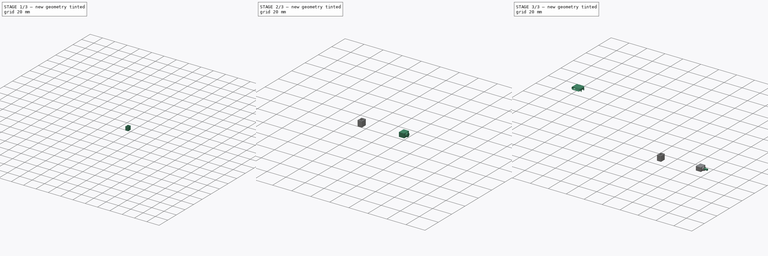
[diagram: build sequence overview — one tinted view per stage of 3, left to right]
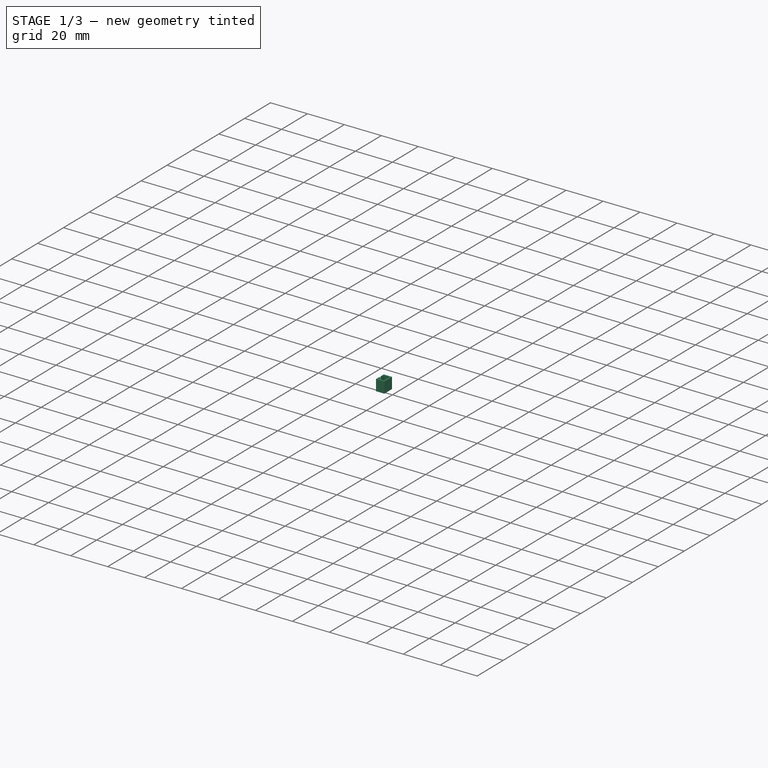
[diagram: stage 1 of 3 — iso view after this stage's code; geometry added in this stage tinted green]
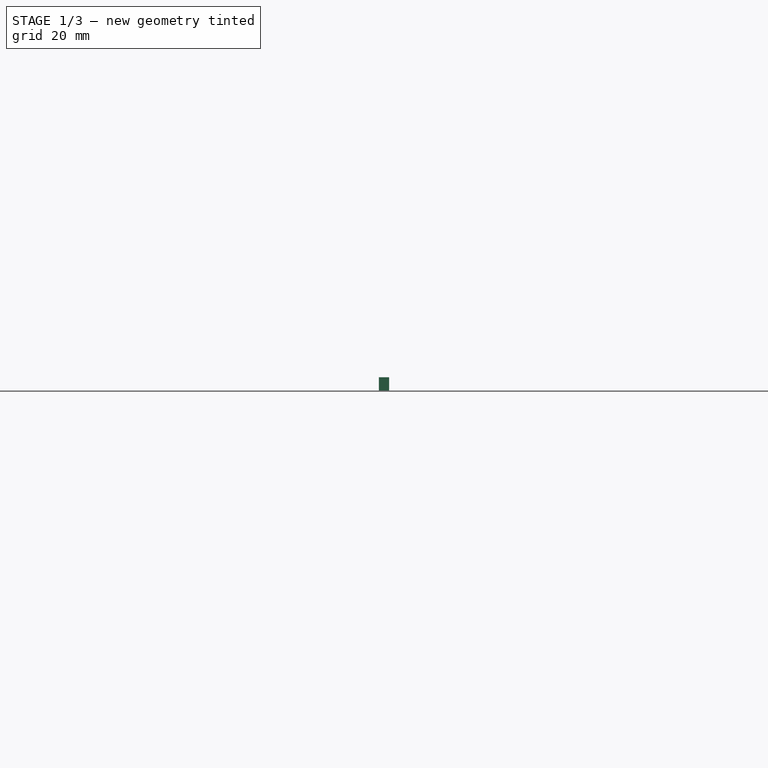
[diagram: stage 1 of 3 — front view after this stage's code; geometry added in this stage tinted green]
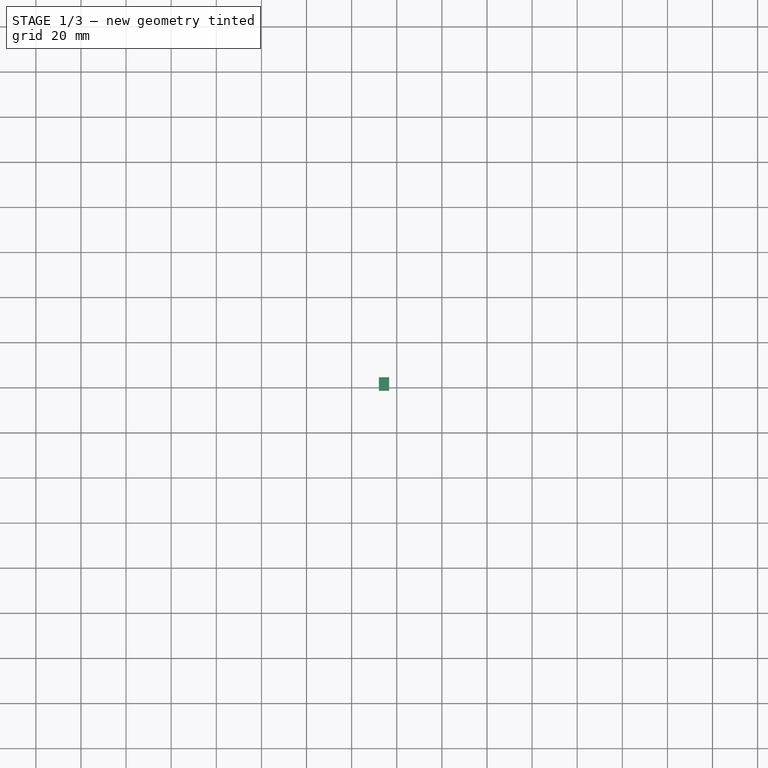
[diagram: stage 1 of 3 — top view after this stage's code; geometry added in this stage tinted green]
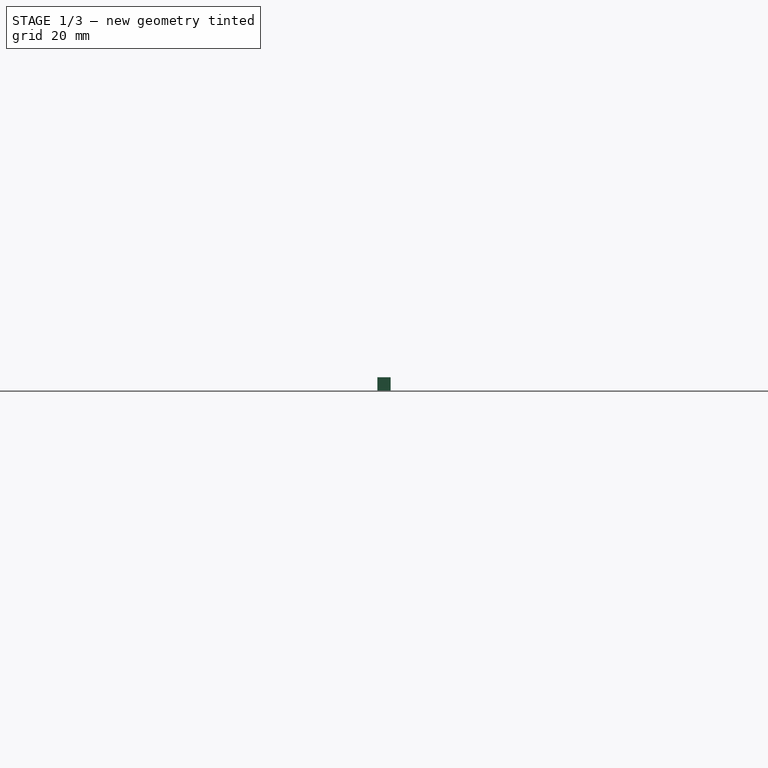
[diagram: stage 1 of 3 — right view after this stage's code; geometry added in this stage tinted green]
FCSTD DOCUMENT  (FreeCAD 0.18.4R)
Label: pcbpopulated
License: All rights reserved
LicenseURL: http://en.wikipedia.org/wiki/All_rights_reserved
objects: Part::Feature×33, Sketcher::SketchObject×6, App::Part×5, PartDesign::Pad×4, PartDesign::Body×3, PartDesign::ShapeBinder×2, PartDesign::CoordinateSystem×1, PartDesign::Boolean×1, PartDesign::Pocket×1
note: 56 computed .brp shape members not serialized (recipe doc carries the construction recipe); baked Part::Feature solids carry a one-line shape summary decoded from their .brp

FEATURE [PartDesign::Body] Body  label="switch"
  Group = -> [CopyPcb_ca95,Sketch,Pad,Sketch001,Pad001,Sketch002,Pad002]
  Origin = -> Origin005
  Tip = -> Pad002
FEATURE [PartDesign::ShapeBinder] CopyPcb_ca95001
  TraceSupport = false
FEATURE [Sketcher::SketchObject] Sketch003
  ExternalGeometry = -> [CopyPcb_ca95001]
  MapMode = 5
  Support = -> [CopyPcb_ca95001]
  sketch-geometry (4):
    g0: LineSegment StartX=152.097 StartY=-75.393 StartZ=0 EndX=156.597 EndY=-75.393 EndZ=0
    g1: LineSegment StartX=156.597 StartY=-75.393 StartZ=0 EndX=156.597 EndY=-81.293 EndZ=0
    g2: LineSegment StartX=156.597 StartY=-81.293 StartZ=0 EndX=152.097 EndY=-81.293 EndZ=0
    g3: LineSegment StartX=152.097 StartY=-81.293 StartZ=0 EndX=152.097 EndY=-75.393 EndZ=0
  constraints (12):
    c: Coincident(g0,g1)
    c: Coincident(g1,g2)
    c: Coincident(g2,g3)
    c: Coincident(g3,g0)
    c: Horizontal(g0)
    c: Horizontal(g2)
    c: Vertical(g1)
    c: Vertical(g3)
    c: Distance(g-3,g3) = 1.7
    c: Distance(g0) = 4.5
    c: Distance(g1) = 5.9
    c: Distance(g-3,g0) = 1.95
FEATURE [PartDesign::Pad] Pad003
  Length = 6
  Length2 = 100
  Profile = -> Sketch003
  Type = 0
FEATURE [Sketcher::SketchObject] Sketch004
  ExternalGeometry = -> [Pad003]
  MapMode = 5
  Placement = pos=(0,0,6) rot=(0,0,1;0rad)
  Support = -> [Pad003]
  sketch-geometry (8):
    g0: LineSegment StartX=155.997 StartY=-75.993 StartZ=0 EndX=152.697 EndY=-75.993 EndZ=0
    g1: LineSegment StartX=152.697 StartY=-75.993 StartZ=0 EndX=152.697 EndY=-77.843 EndZ=0
    g2: LineSegment StartX=152.697 StartY=-77.843 StartZ=0 EndX=152.097 EndY=-77.843 EndZ=0
    g3: LineSegment StartX=152.097 StartY=-77.843 StartZ=0 EndX=152.097 EndY=-78.843 EndZ=0
    g4: LineSegment StartX=152.097 StartY=-78.843 StartZ=0 EndX=152.697 EndY=-78.843 EndZ=0
    g5: LineSegment StartX=152.697 StartY=-78.843 StartZ=0 EndX=152.697 EndY=-80.693 EndZ=0
    g6: LineSegment StartX=152.697 StartY=-80.693 StartZ=0 EndX=155.997 EndY=-80.693 EndZ=0
    g7: LineSegment StartX=155.997 StartY=-80.693 StartZ=0 EndX=155.997 EndY=-75.993 EndZ=0
  constraints (24):
    c: Horizontal(g0)
    c: Coincident(g0,g1)
    c: Vertical(g1)
    c: Coincident(g1,g2)
    c: Horizontal(g2)
    c: Coincident(g2,g3)
    c: Vertical(g3)
    c: Coincident(g3,g4)
    c: Horizontal(g4)
    c: Coincident(g4,g5)
    c: Vertical(g5)
    c: Coincident(g5,g6)
    c: Horizontal(g6)
    c: Coincident(g6,g7)
    c: Coincident(g7,g0)
    c: Vertical(g7)
    c: PointOnObject(g2,g-3)
    c: PointOnObject(g1,g5)
    c: Distance(g-3,g0) = 0.6
    c: Distance(g0,g-3) = 0.6
    c: Distance(g-3,g6) = 0.6
    c: Distance(g0,g-4) = 0.6
    c: Distance(g3) = 1
    c: Distance(g-3,g2) = 2.45
FEATURE [PartDesign::Pocket] Pocket
  BaseFeature = -> Pad003
  Length = 5
  Length2 = 100
  Profile = -> Sketch004
  Type = 0
FEATURE [PartDesign::Body] Body003
  Group = -> [Sketch003,Pad003,Sketch004,Pocket,CopyPcb_ca95001]
  Origin = -> Origin008
  Tip = -> Pocket
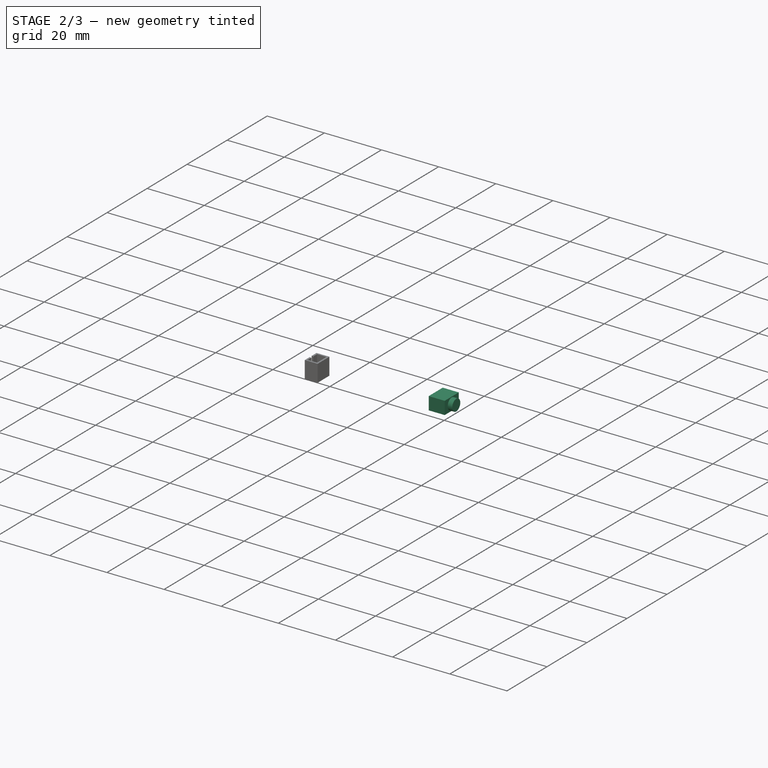
[diagram: stage 2 of 3 — iso view after this stage's code; geometry added in this stage tinted green]
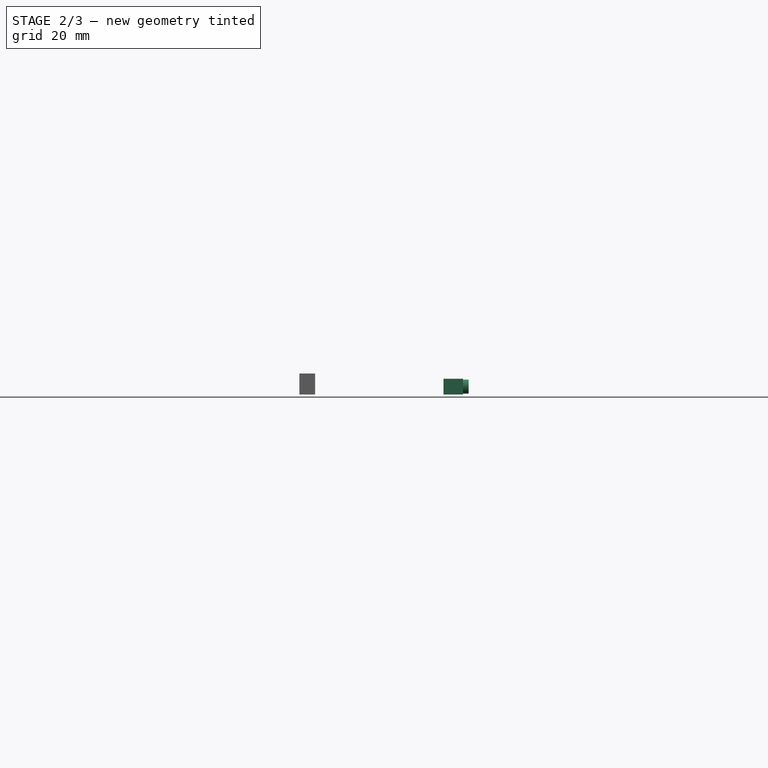
[diagram: stage 2 of 3 — front view after this stage's code; geometry added in this stage tinted green]
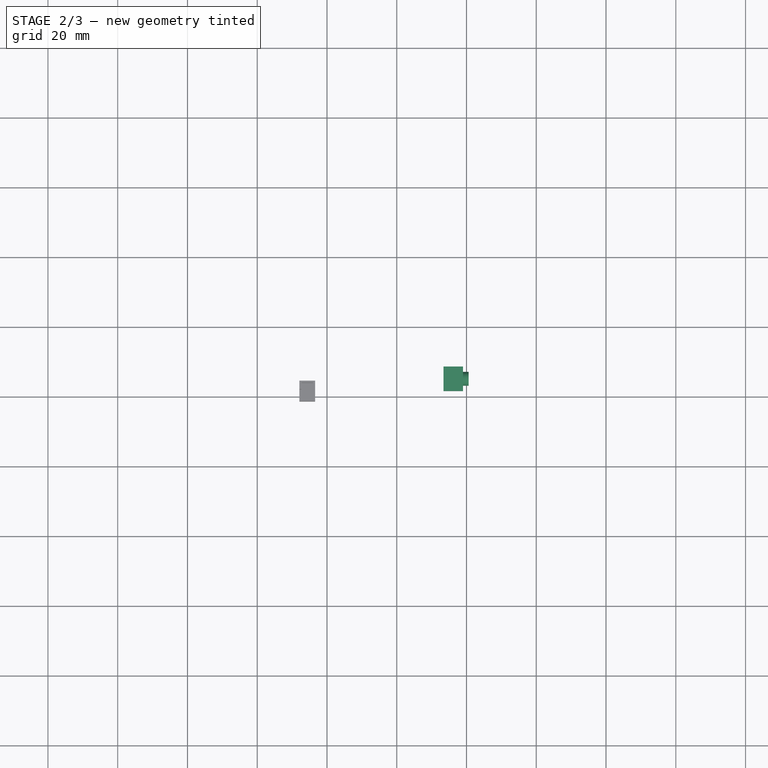
[diagram: stage 2 of 3 — top view after this stage's code; geometry added in this stage tinted green]
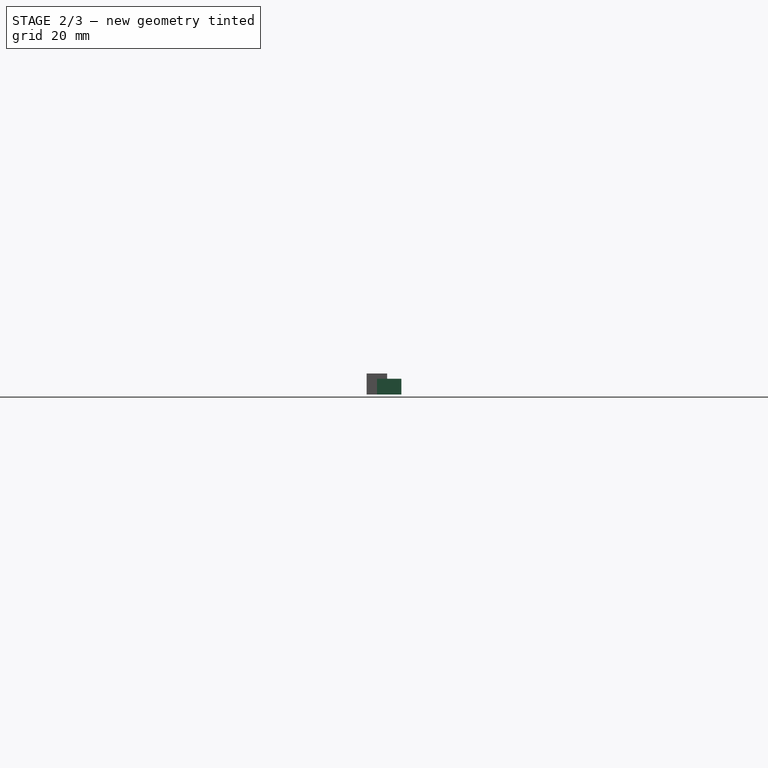
[diagram: stage 2 of 3 — right view after this stage's code; geometry added in this stage tinted green]
FEATURE [PartDesign::Body] Body002  label="usb-c"
  Group = -> [Boolean]
  Origin = -> Origin007
  Placement = pos=(178.2,-68.2,0) rot=(0,0,1;3.14159rad)
  Tip = -> Boolean
FEATURE [PartDesign::ShapeBinder] CopyPcb_ca95
  TraceSupport = false
FEATURE [Sketcher::SketchObject] Sketch
  ExternalGeometry = -> [CopyPcb_ca95]
  MapMode = 5
  Support = -> [CopyPcb_ca95]
  sketch-geometry (10):
    g0: LineSegment StartX=193.393 StartY=-71.303 StartZ=0 EndX=198.993 EndY=-71.303 EndZ=0
    g1: LineSegment StartX=198.993 StartY=-71.303 StartZ=0 EndX=198.993 EndY=-78.303 EndZ=0
    g2: LineSegment StartX=198.993 StartY=-78.303 StartZ=0 EndX=193.393 EndY=-78.303 EndZ=0
    g3: LineSegment StartX=193.393 StartY=-78.303 StartZ=0 EndX=193.393 EndY=-71.303 EndZ=0
    g4: LineSegment [constr] StartX=192.913 StartY=-72.263 StartZ=0 EndX=192.913 EndY=-77.343 EndZ=0
    g5: GeomPoint X=193.393 Y=-74.803 Z=0
    g6: LineSegment StartX=193.393 StartY=-74.803 StartZ=0 EndX=192.913 EndY=-74.803 EndZ=0
    g7: LineSegment [constr] StartX=192.913 StartY=-72.263 StartZ=0 EndX=197.993 EndY=-77.343 EndZ=0
    g8: LineSegment [constr] StartX=197.993 StartY=-72.263 StartZ=0 EndX=192.913 EndY=-77.343 EndZ=0
    g9: GeomPoint X=195.453 Y=-74.803 Z=0
  constraints (25):
    c: Coincident(g0,g1)
    c: Coincident(g1,g2)
    c: Coincident(g2,g3)
    c: Coincident(g3,g0)
    c: Horizontal(g0)
    c: Horizontal(g2)
    c: Vertical(g1)
    c: Vertical(g3)
    c: Coincident(g4,g-3)
    c: Coincident(g4,g-6)
    c: Distance(g3) = 7
    c: PointOnObject(g5,g3)
    c: Distance(g5,g0) = 3.5
    c: Coincident(g6,g5)
    c: PointOnObject(g6,g4)
    c: Horizontal(g6)
    c: Coincident(g7,g4)
    c: Coincident(g7,g-5)
    c: Coincident(g8,g-4)
    c: Coincident(g8,g4)
    c: PointOnObject(g9,g8)
    c: PointOnObject(g9,g7)
    c: PointOnObject(g9,g6)
    c: Distance(g0) = 5.6
    c: Distance(g8,g1) = 1
FEATURE [PartDesign::Pad] Pad
  Length = 4.5
  Length2 = 100
  Profile = -> Sketch
  Type = 0
FEATURE [Sketcher::SketchObject] Sketch001
  ExternalGeometry = -> [Pad]
  MapMode = 5
  Placement = pos=(198.993,0,0) rot=(0.57735,0.57735,0.57735;2.0944rad)
  Support = -> [Pad]
  sketch-geometry (4):
    g0: LineSegment [constr] StartX=-78.303 StartY=4.5 StartZ=0 EndX=-71.303 EndY=0 EndZ=0
    g1: LineSegment [constr] StartX=-71.303 StartY=4.5 StartZ=0 EndX=-78.303 EndY=0 EndZ=0
    g2: GeomPoint X=-74.803 Y=2.25 Z=0
    g3: Circle CenterX=-74.803 CenterY=2.25 CenterZ=0 NormalX=0 NormalY=0 NormalZ=1 AngleXU=0 Radius=2
  constraints (8):
    c: Coincident(g0,g-4)
    c: Coincident(g0,g-5)
    c: Coincident(g1,g-5)
    c: Coincident(g1,g-4)
    c: PointOnObject(g2,g0)
    c: PointOnObject(g2,g1)
    c: Coincident(g3,g2)
    c: Radius(g3) = 2
FEATURE [PartDesign::Pad] Pad001
  BaseFeature = -> Pad
  Length = 1.6
  Length2 = 100
  Profile = -> Sketch001
  Type = 0
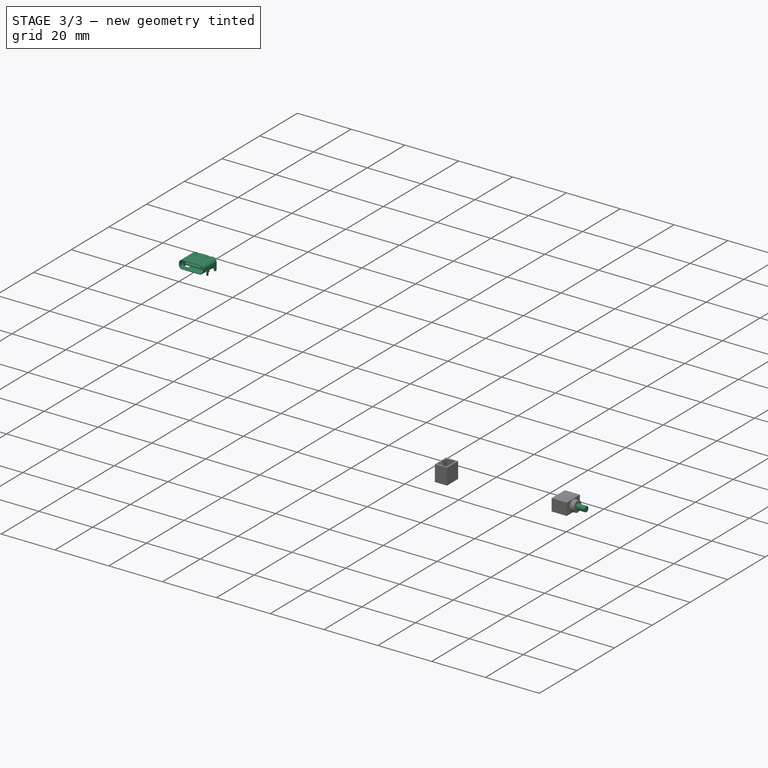
[diagram: stage 3 of 3 — iso view after this stage's code; geometry added in this stage tinted green]
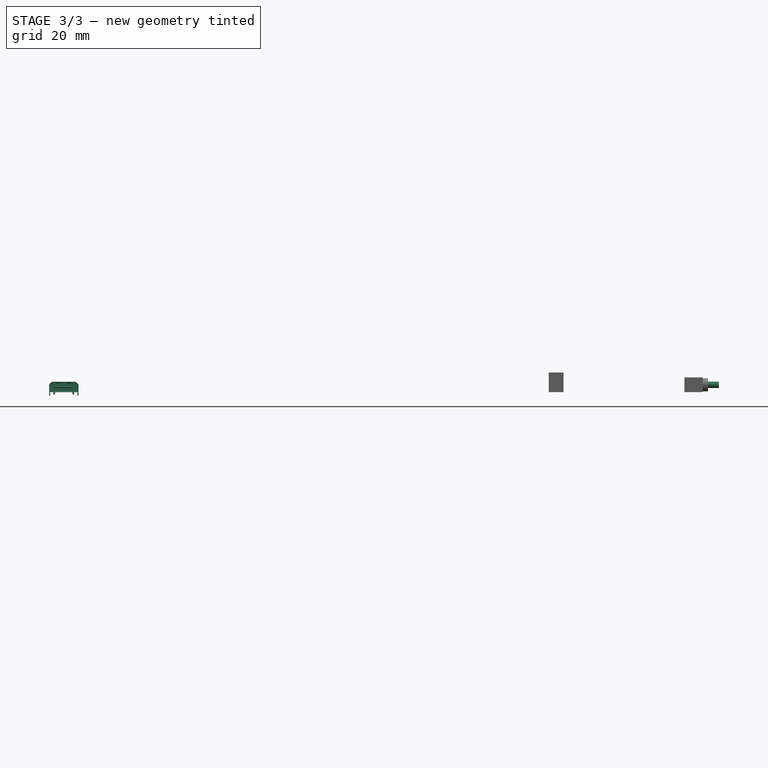
[diagram: stage 3 of 3 — front view after this stage's code; geometry added in this stage tinted green]
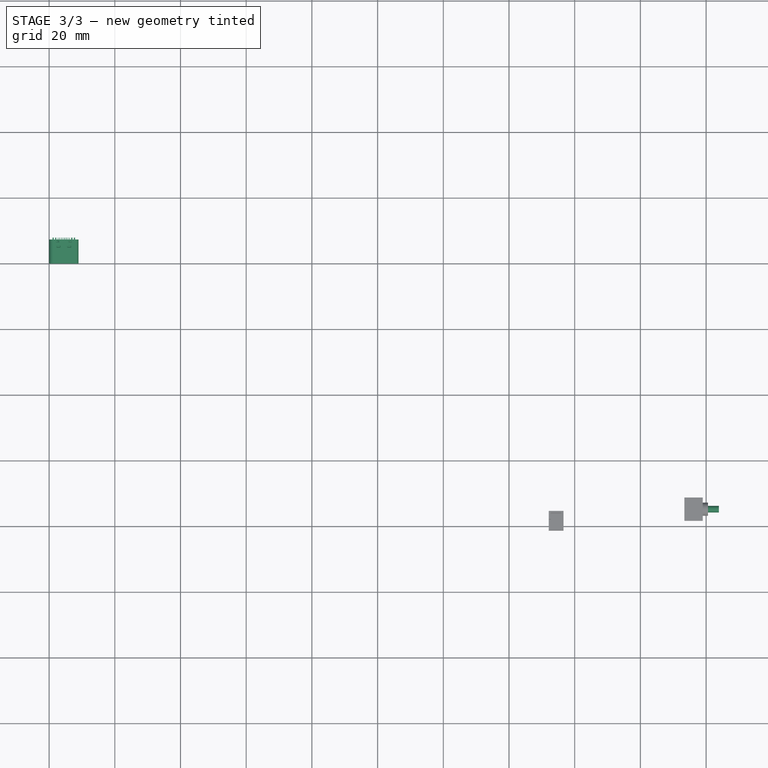
[diagram: stage 3 of 3 — top view after this stage's code; geometry added in this stage tinted green]
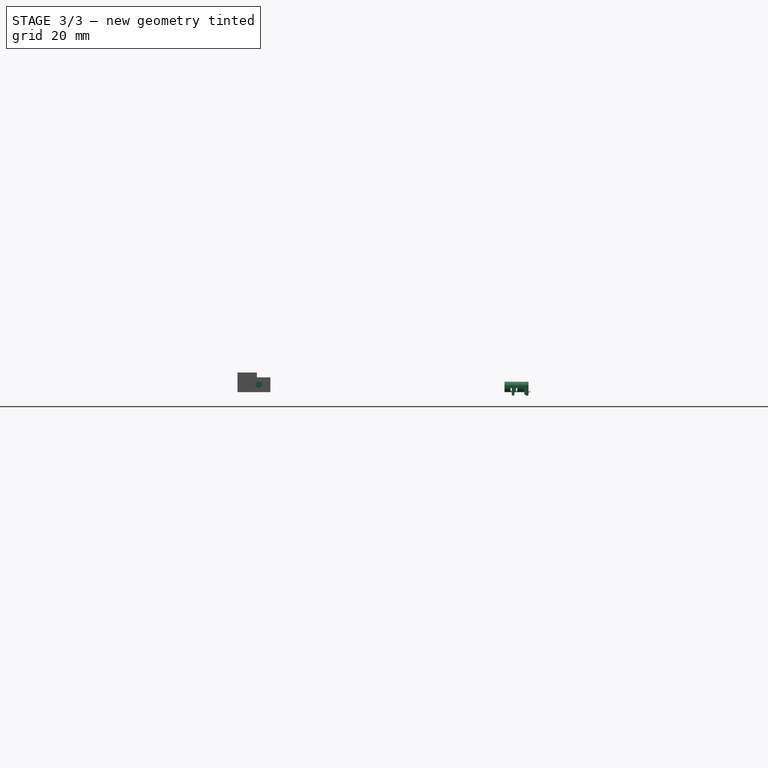
[diagram: stage 3 of 3 — right view after this stage's code; geometry added in this stage tinted green]
FEATURE [PartDesign::CoordinateSystem] Local_CS_ca95
  AttacherType = Attacher::AttachEngine3D
FEATURE [Part::Feature] Pcb_ca95
  shape: bbox 49 x 31 x 1.6 mm, 124 faces (baked)
FEATURE [Sketcher::SketchObject] PCB_Sketch_ca95
  sketch-geometry (24):
    g0: LineSegment StartX=178.5 StartY=-90.75 StartZ=0 EndX=178.5 EndY=-78.5 EndZ=0
    g1: LineSegment StartX=178 StartY=-78 StartZ=0 EndX=169.5 EndY=-78 EndZ=0
    g2: LineSegment StartX=169 StartY=-78.5 StartZ=0 EndX=169 EndY=-90.75 EndZ=0
    g3: LineSegment StartX=169.5 StartY=-91.25 StartZ=0 EndX=178 EndY=-91.25 EndZ=0
    g4: LineSegment StartX=190.5 StartY=-74 StartZ=0 EndX=181.5 EndY=-74 EndZ=0
    g5: LineSegment StartX=191.5 StartY=-70 StartZ=0 EndX=191.5 EndY=-73 EndZ=0
    g6: LineSegment StartX=180.5 StartY=-73 StartZ=0 EndX=180.5 EndY=-70 EndZ=0
    g7: LineSegment StartX=199 StartY=-69 StartZ=0 EndX=192.5 EndY=-69 EndZ=0
    g8: LineSegment StartX=179.5 StartY=-69 StartZ=0 EndX=152 EndY=-69 EndZ=0
    g9: LineSegment StartX=200 StartY=-99 StartZ=0 EndX=200 EndY=-70 EndZ=0
    g10: LineSegment StartX=151 StartY=-70 StartZ=0 EndX=151 EndY=-99 EndZ=0
    g11: LineSegment StartX=152 StartY=-100 StartZ=0 EndX=199 EndY=-100 EndZ=0
    g12: ArcOfCircle CenterX=178 CenterY=-78.5 CenterZ=0 NormalX=0 NormalY=0 NormalZ=1 AngleXU=0 Radius=0.5 StartAngle=0 EndAngle=1.5708
    g13: ArcOfCircle CenterX=169.5 CenterY=-78.5 CenterZ=0 NormalX=0 NormalY=0 NormalZ=1 AngleXU=0 Radius=0.5 StartAngle=1.5708 EndAngle=3.14159
    g14: ArcOfCircle CenterX=178 CenterY=-90.75 CenterZ=0 NormalX=0 NormalY=0 NormalZ=1 AngleXU=0 Radius=0.5 StartAngle=4.71239 EndAngle=6.28319
    g15: ArcOfCircle CenterX=169.5 CenterY=-90.75 CenterZ=0 NormalX=0 NormalY=0 NormalZ=1 AngleXU=0 Radius=0.5 StartAngle=3.14159 EndAngle=4.71239
    g16: ArcOfCircle CenterX=190.5 CenterY=-73 CenterZ=0 NormalX=0 NormalY=0 NormalZ=1 AngleXU=0 Radius=1 StartAngle=4.71239 EndAngle=6.28319
    g17: ArcOfCircle CenterX=181.5 CenterY=-73 CenterZ=0 NormalX=0 NormalY=0 NormalZ=1 AngleXU=0 Radius=1 StartAngle=3.14159 EndAngle=4.71239
    g18: ArcOfCircle CenterX=192.5 CenterY=-70 CenterZ=0 NormalX=0 NormalY=0 NormalZ=1 AngleXU=0 Radius=1 StartAngle=1.5708 EndAngle=3.14159
    g19: ArcOfCircle CenterX=179.5 CenterY=-70 CenterZ=0 NormalX=0 NormalY=0 NormalZ=1 AngleXU=0 Radius=1 StartAngle=0 EndAngle=1.5708
    g20: ArcOfCircle CenterX=199 CenterY=-70 CenterZ=0 NormalX=0 NormalY=0 NormalZ=1 AngleXU=0 Radius=1 StartAngle=0 EndAngle=1.5708
    g21: ArcOfCircle CenterX=152 CenterY=-70 CenterZ=0 NormalX=0 NormalY=0 NormalZ=1 AngleXU=0 Radius=1 StartAngle=1.5708 EndAngle=3.14159
    g22: ArcOfCircle CenterX=199 CenterY=-99 CenterZ=0 NormalX=0 NormalY=0 NormalZ=1 AngleXU=0 Radius=1 StartAngle=4.71239 EndAngle=6.28319
    g23: ArcOfCircle CenterX=152 CenterY=-99 CenterZ=0 NormalX=0 NormalY=0 NormalZ=1 AngleXU=0 Radius=1 StartAngle=3.14159 EndAngle=4.71239
  constraints (24):
    c: Coincident(g10,g23)
    c: Coincident(g10,g21)
    c: Coincident(g23,g11)
    c: Coincident(g21,g8)
    c: Coincident(g2,g15)
    c: Coincident(g2,g13)
    c: Coincident(g3,g15)
    c: Coincident(g1,g13)
    c: Coincident(g3,g14)
    c: Coincident(g12,g1)
    c: Coincident(g0,g14)
    c: Coincident(g12,g0)
    c: Coincident(g8,g19)
    c: Coincident(g6,g17)
    c: Coincident(g19,g6)
    c: Coincident(g17,g4)
    c: Coincident(g16,g4)
    c: Coincident(g16,g5)
    c: Coincident(g18,g5)
    c: Coincident(g18,g7)
    c: Coincident(g11,g22)
    c: Coincident(g7,g20)
    c: Coincident(g9,g22)
    c: Coincident(g20,g9)
FEATURE [App::Part] Board_Geoms_ca95
  Group = -> [Local_CS_ca95,Pcb_ca95,PCB_Sketch_ca95]
  Origin = -> Origin
FEATURE [App::Part] Bot_ca95
  Origin = -> Origin004
FEATURE [Part::Feature] Shape002  label="R15_R_0805_2012Metric_5F4384B2"
  Placement = pos=(187.833,-90.0915,0) rot=(0,0,-1;1.5708rad)
  shape: bbox 1.2 x 2 x 0.45 mm, 26 faces (baked)
FEATURE [Part::Feature] Shape003  label="R14_R_0805_2012Metric_5F41A5F7"
  Placement = pos=(190.119,-85.979,0) rot=(0,0,1;3.14159rad)
  shape: bbox 2 x 1.2 x 0.45 mm, 26 faces (baked)
FEATURE [Part::Feature] Shape004  label="R13_R_0805_2012Metric_5F41A621"
  Placement = pos=(190.119,-83.82,0) rot=(0,0,1;3.14159rad)
  shape: bbox 2 x 1.2 x 0.45 mm, 26 faces (baked)
FEATURE [Part::Feature] Shape005  label="R12_R_0805_2012Metric_5F41A5CD"
  Placement = pos=(187.96,-80.1855,0) rot=(0,0,1;1.5708rad)
  shape: bbox 1.2 x 2 x 0.45 mm, 26 faces (baked)
FEATURE [Part::Feature] Shape006  label="R11_R_0805_2012Metric_5F41A5A3"
  Placement = pos=(185.801,-80.1855,0) rot=(0,0,1;1.5708rad)
  shape: bbox 1.2 x 2 x 0.45 mm, 26 faces (baked)
FEATURE [Part::Feature] Shape007  label="R10_R_0805_2012Metric_5F438482"
  Placement = pos=(183.515,-90.0915,0) rot=(0,0,-1;1.5708rad)
  shape: bbox 1.2 x 2 x 0.45 mm, 26 faces (baked)
FEATURE [Part::Feature] Shape008  label="R9_R_0805_2012Metric_5F438452"
  Placement = pos=(185.674,-90.0915,0) rot=(0,0,1;1.5708rad)
  shape: bbox 1.2 x 2 x 0.45 mm, 26 faces (baked)
FEATURE [Part::Feature] Shape009  label="R8_R_0805_2012Metric_5F418730"
  Placement = pos=(155.575,-85.0415,0) rot=(0,0,1;1.5708rad)
  shape: bbox 1.2 x 2 x 0.45 mm, 26 faces (baked)
FEATURE [Part::Feature] Shape010  label="R7_R_0805_2012Metric_5F4188D7"
  Placement = pos=(159.337,-95.504,0) rot=(0,0,1;3.14159rad)
  shape: bbox 2 x 1.2 x 0.45 mm, 26 faces (baked)
FEATURE [Part::Feature] Shape011  label="R6_R_0805_2012Metric_5F418706"
  Placement = pos=(159.337,-93.218,0) rot=(0,0,1;0rad)
  shape: bbox 2 x 1.2 x 0.45 mm, 26 faces (baked)
FEATURE [Part::Feature] Shape012  label="R5_R_0805_2012Metric_5F418601"
  Placement = pos=(162.56,-90.2185,0) rot=(0,0,-1;1.5708rad)
  shape: bbox 1.2 x 2 x 0.45 mm, 26 faces (baked)
FEATURE [Part::Feature] Shape013  label="R4_R_0805_2012Metric_5F41862B"
  Placement = pos=(164.742,-78.232,0) rot=(0,0,1;0rad)
  shape: bbox 2 x 1.2 x 0.45 mm, 26 faces (baked)
FEATURE [Part::Feature] Shape014  label="R3_R_0805_2012Metric_5F4186A6"
  Placement = pos=(164.742,-76.073,0) rot=(0,0,1;3.14159rad)
  shape: bbox 2 x 1.2 x 0.45 mm, 26 faces (baked)
FEATURE [Part::Feature] Shape015  label="R2_R_0805_2012Metric_5F4185D7"
  Placement = pos=(164.846,-90.2185,0) rot=(0,0,1;1.5708rad)
  shape: bbox 1.2 x 2 x 0.45 mm, 26 faces (baked)
FEATURE [Part::Feature] Shape016  label="R1_R_0805_2012Metric_5F4183FD"
  Placement = pos=(167.132,-90.2185,0) rot=(0,0,-1;1.5708rad)
  shape: bbox 1.2 x 2 x 0.45 mm, 26 faces (baked)
FEATURE [Part::Feature] Shape017  label="C5_C_0805_2012Metric_5F418A8F"
  Placement = pos=(159.337,-90.932,0) rot=(0,0,1;0rad)
  shape: bbox 2 x 1.25 x 1.25 mm, 28 faces (baked)
FEATURE [Part::Feature] Shape018  label="C4_C_0805_2012Metric_5F418A5F"
  Placement = pos=(159.306,-97.79,0) rot=(0,0,1;3.14159rad)
  shape: bbox 2 x 1.25 x 1.25 mm, 28 faces (baked)
FEATURE [Part::Feature] Shape019  label="C2_C_0805_2012Metric_5F41895D"
  Placement = pos=(160.909,-77.0105,0) rot=(0,0,-1;1.5708rad)
  shape: bbox 1.25 x 2 x 1.25 mm, 28 faces (baked)
FEATURE [Part::Feature] Shape020  label="C1_C_0805_2012Metric_5F41892D"
  Placement = pos=(158.877,-77.0105,0) rot=(0,0,-1;1.5708rad)
  shape: bbox 1.25 x 2 x 1.25 mm, 28 faces (baked)
FEATURE [Part::Feature] Shape021  label="C3_C_0805_2012Metric_5F41A650"
  Placement = pos=(181.292,-90.1065,0) rot=(0,0,-1;1.5708rad)
  shape: bbox 1.25 x 2 x 1.25 mm, 28 faces (baked)
FEATURE [Part::Feature] Shape022  label="C6_C_0805_2012Metric_5F43930C"
  Placement = pos=(183.642,-80.2005,0) rot=(0,0,1;1.5708rad)
  shape: bbox 1.25 x 2 x 1.25 mm, 28 faces (baked)
FEATURE [Part::Feature] Shape023  label="D1_LED_0805_2012Metric_5F4185A5"
  Placement = pos=(181.942,-75.184,0) rot=(0,0,1;3.14159rad)
  shape: bbox 2 x 1.25 x 1.1 mm, 50 faces (baked)
FEATURE [Part::Feature] Shape024  label="D2_LED_0805_2012Metric_5F4186D4"
  Placement = pos=(197.534,-70.104,0) rot=(0,0,1;3.14159rad)
  shape: bbox 2 x 1.25 x 1.1 mm, 50 faces (baked)
FEATURE [Part::Feature] Shape025  label="D3_LED_0805_2012Metric_5F41A51D"
  Placement = pos=(186.04,-75.184,0) rot=(0,0,1;3.14159rad)
  shape: bbox 2 x 1.25 x 1.1 mm, 50 faces (baked)
FEATURE [Part::Feature] Shape026  label="D4_LED_0805_2012Metric_5F41A4E7"
  Placement = pos=(190.071,-75.184,0) rot=(0,0,1;0rad)
  shape: bbox 2 x 1.25 x 1.1 mm, 50 faces (baked)
FEATURE [Part::Feature] Shape027  label="S1_SW_CuK_JS202011AQN_DPDT_Angled_5F418324"
  Placement = pos=(165.227,-73.279,0) rot=(0,0,1;3.14159rad)
  shape: bbox 9 x 5.605 x 6.5 mm, 182 faces (baked)
FEATURE [Part::Feature] Shape028  label="U1_Texas_S_PVQFN_N16_EP27x27mm_5F41877F"
  Placement = pos=(164.655,-95.6945,0) rot=(0,0,1;1.5708rad)
  shape: bbox 4 x 4 x 0.78 mm, 104 faces (baked)
FEATURE [Part::Feature] Shape029  label="U2_QFN-20-1EP_4x4mm_Pitch0.5mm_5F41A47B"
  Placement = pos=(185.039,-85.09,0) rot=(0,0,1;1.5708rad)
  shape: bbox 4 x 4 x 0.77 mm, 134 faces (baked)
FEATURE [App::Part] Top_ca95
  Group = -> [Shape002,Shape003,Shape004,Shape005,Shape006,Shape007,Shape008,Shape009,Shape010,Shape011,Shape012,Shape013,Shape014,Shape015,Shape016,Shape017,Shape018,Shape019,Shape020,Shape021,Shape022,Shape023,Shape024,Shape025,Shape026,Shape027,Shape028,Shape029]
  Origin = -> Origin003
FEATURE [App::Part] Step_Models_ca95
  Group = -> [Top_ca95,Bot_ca95]
  Origin = -> Origin002
FEATURE [App::Part] Board_ca95  label="pcb"
  Group = -> [Board_Geoms_ca95,Step_Models_ca95]
  Origin = -> Origin001
FEATURE [Part::Feature] Part__Feature002  label="Mold"
  shape: bbox 8.95 x 6.5 x 3.731 mm, 55 faces (baked)
FEATURE [Part::Feature] Part__Feature  label="ConPins"
  shape: bbox 6 x 4.32 x 0.61 mm, 70 faces (baked)
FEATURE [Part::Feature] Part__Feature003  label="Frame"
  shape: bbox 8.95 x 7.3 x 4.2 mm, 323 faces (baked)
FEATURE [Part::Feature] Part__Feature001  label="PcbPins"
  shape: bbox 6.9 x 0.99 x 0.3 mm, 122 faces (baked)
FEATURE [PartDesign::Boolean] Boolean
  Group = -> [Part__Feature,Part__Feature002,Part__Feature003,Part__Feature001]
  Type = 0
FEATURE [Sketcher::SketchObject] Sketch002
  ExternalGeometry = -> [Pad001]
  MapMode = 5
  Placement = pos=(200.593,0,0) rot=(0.57735,0.57735,0.57735;2.0944rad)
  Support = -> [Pad001]
  sketch-geometry (1):
    g0: Circle CenterX=-74.803 CenterY=2.25 CenterZ=0 NormalX=0 NormalY=0 NormalZ=1 AngleXU=0 Radius=1
  constraints (2):
    c: Coincident(g0,g-3)
    c: Radius(g0) = 1
FEATURE [PartDesign::Pad] Pad002
  BaseFeature = -> Pad001
  Length = 3.3
  Length2 = 100
  Profile = -> Sketch002
  Type = 0
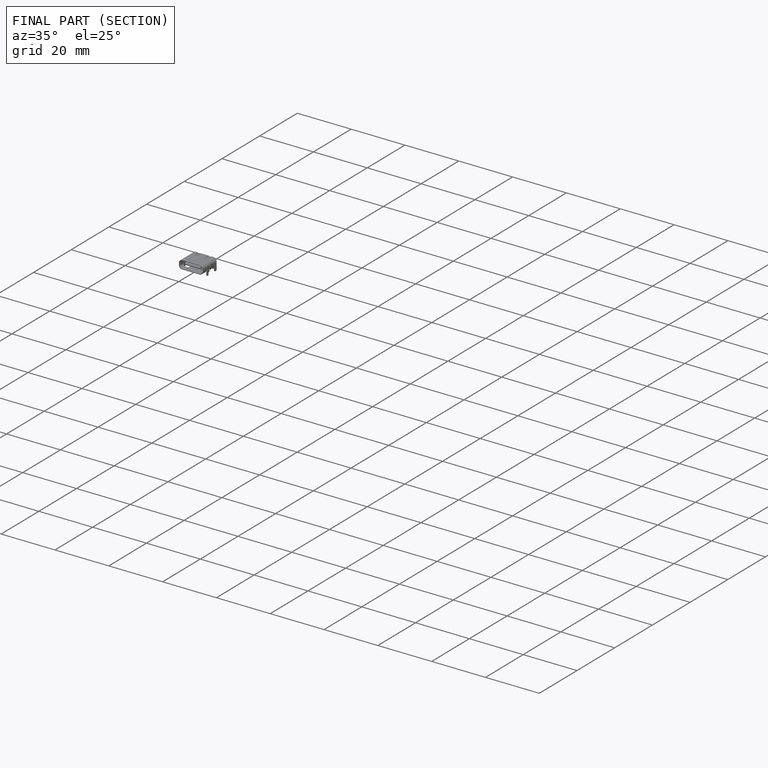
[diagram: finished part — half-section view (interior)]
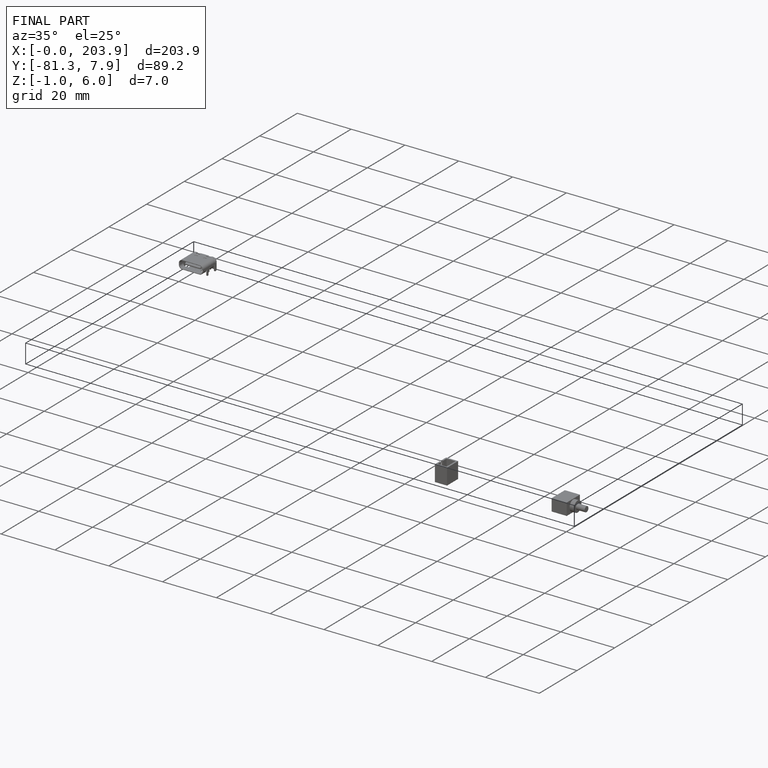
[diagram: finished part — iso view with bounding-box wireframe]
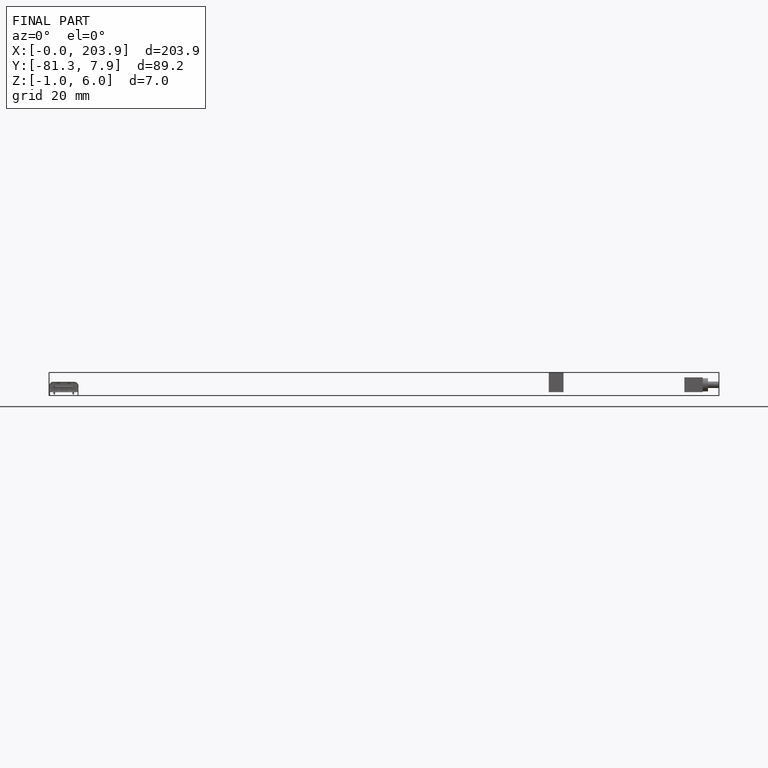
[diagram: finished part — front view with bounding-box wireframe]
